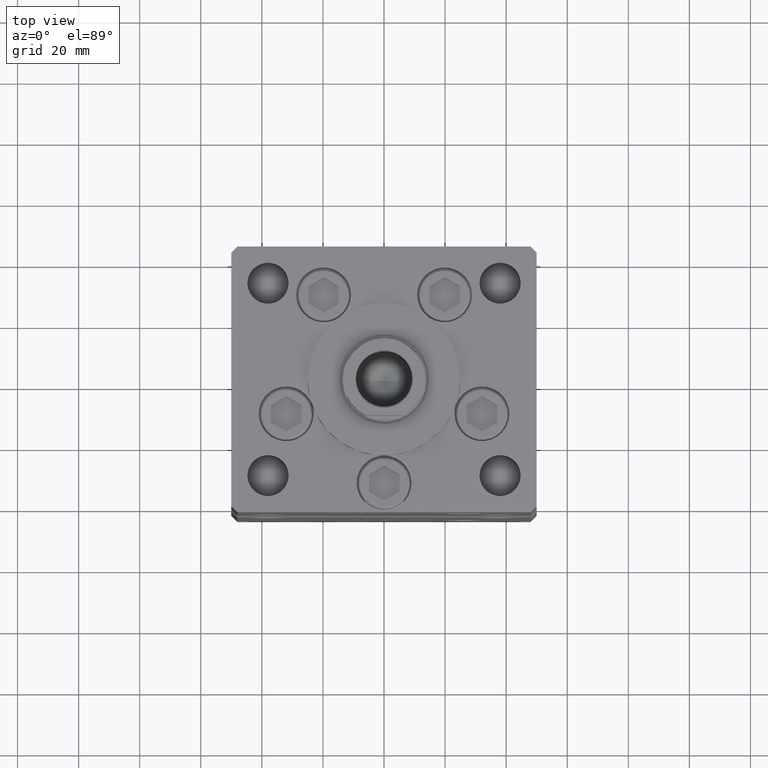
[diagram: clean part render]
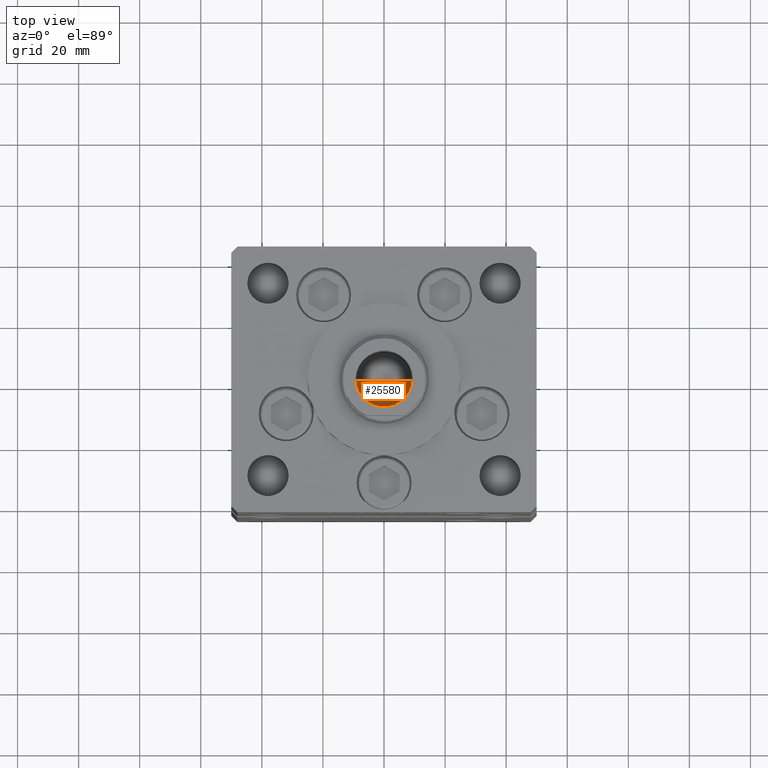
[diagram: same view with one face highlighted and labeled with its STEP entity id]
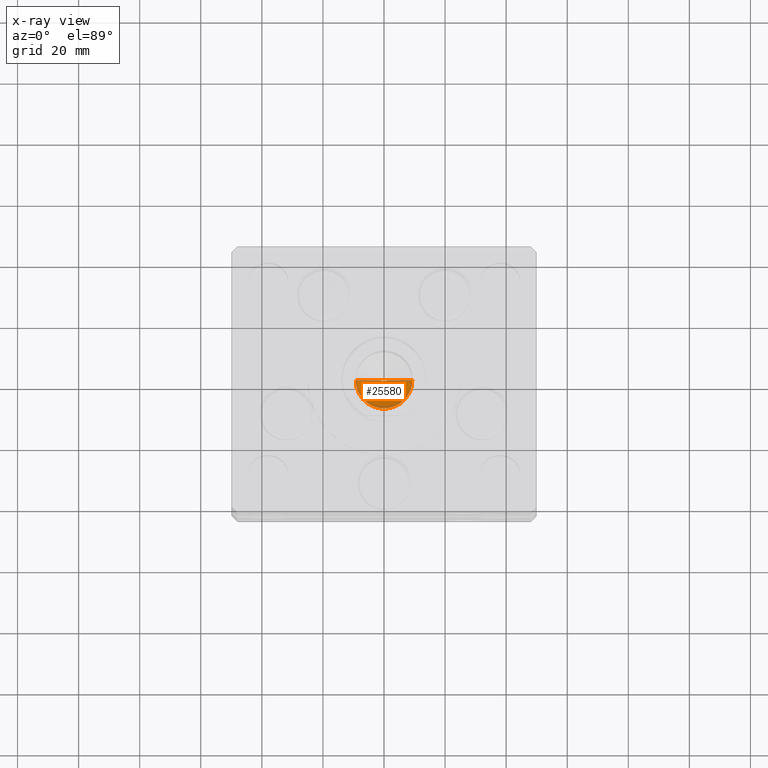
[diagram: x-ray of the same camera — body ghosted, the highlighted face saturated]
A machine part, top view. The second image highlights one B-rep face of the part: STEP entity #25580.
The next image is the same camera in x-ray: the body ghosted, the highlighted face saturated — about 9% of this face is hidden behind the body in this view.
In plain terms, the highlighted conical surface has half-angle 59 deg.
Its self-contained STEP definition (entity closure, byte-faithful):
#1175 = DIRECTION ( 'NONE',  ( 1.000000000000000000, 0.000000000000000000, 0.000000000000000000 ) ) ;
#2476 = CARTESIAN_POINT ( 'NONE',  ( 9.249999999999994671, 0.000000000000000000, 130.2500000000000000 ) ) ;
#4908 = DIRECTION ( 'NONE',  ( -0.000000000000000000, -0.000000000000000000, 1.000000000000000000 ) ) ;
#5750 = DIRECTION ( 'NONE',  ( -0.000000000000000000, -0.000000000000000000, 1.000000000000000000 ) ) ;
#8109 = DIRECTION ( 'NONE',  ( 1.000000000000000000, 0.000000000000000000, 0.000000000000000000 ) ) ;
#9310 = VECTOR ( 'NONE', #51441, 1000.000000000000000 ) ;
#9497 = CARTESIAN_POINT ( 'NONE',  ( 0.000000000000000000, 0.000000000000000000, 130.2500000000000000 ) ) ;
#9521 = CARTESIAN_POINT ( 'NONE',  ( -9.249999999999994671, 1.132798289211300909E-15, 130.2500000000000000 ) ) ;
#9746 = CARTESIAN_POINT ( 'NONE',  ( -9.249999999999994671, 1.132798289211300909E-15, 130.2500000000000000 ) ) ;
#10951 = AXIS2_PLACEMENT_3D ( 'NONE', #37450, #4908, #8109 ) ;
#11393 = DIRECTION ( 'NONE',  ( 0.8571673007021117785, 0.000000000000000000, 0.5150380749100550437 ) ) ;
#12029 = EDGE_LOOP ( 'NONE', ( #42062, #28482, #44977 ) ) ;
#15256 = CONICAL_SURFACE ( 'NONE', #10951, 9.249999999999994671, 1.029744258676653423 ) ;
#18462 = CARTESIAN_POINT ( 'NONE',  ( -1.046994375366439223E-14, 0.000000000000000000, 124.6920392739950643 ) ) ;
#21290 = FACE_OUTER_BOUND ( 'NONE', #12029, .T. ) ;
#22980 = LINE ( 'NONE', #39419, #38892 ) ;
#24620 = VERTEX_POINT ( 'NONE', #9521 ) ;
#25580 = ADVANCED_FACE ( 'NONE', ( #21290 ), #15256, .F. ) ;
#28387 = EDGE_CURVE ( 'NONE', #36096, #24620, #43112, .T. ) ;
#28482 = ORIENTED_EDGE ( 'NONE', *, *, #28387, .T. ) ;
#30489 = EDGE_CURVE ( 'NONE', #24620, #42267, #46314, .T. ) ;
#36096 = VERTEX_POINT ( 'NONE', #18462 ) ;
#36837 = AXIS2_PLACEMENT_3D ( 'NONE', #9497, #5750, #1175 ) ;
#37450 = CARTESIAN_POINT ( 'NONE',  ( 0.000000000000000000, 0.000000000000000000, 130.2500000000000000 ) ) ;
#38892 = VECTOR ( 'NONE', #11393, 1000.000000000000000 ) ;
#39419 = CARTESIAN_POINT ( 'NONE',  ( 9.249999999999994671, 0.000000000000000000, 130.2500000000000000 ) ) ;
#42062 = ORIENTED_EDGE ( 'NONE', *, *, #44071, .F. ) ;
#42267 = VERTEX_POINT ( 'NONE', #2476 ) ;
#43112 = LINE ( 'NONE', #9746, #9310 ) ;
#44071 = EDGE_CURVE ( 'NONE', #36096, #42267, #22980, .T. ) ;
#44977 = ORIENTED_EDGE ( 'NONE', *, *, #30489, .T. ) ;
#46314 = CIRCLE ( 'NONE', #36837, 9.249999999999994671 ) ;
#51441 = DIRECTION ( 'NONE',  ( -0.8571673007021117785, 1.049727191138617956E-16, 0.5150380749100550437 ) ) ;